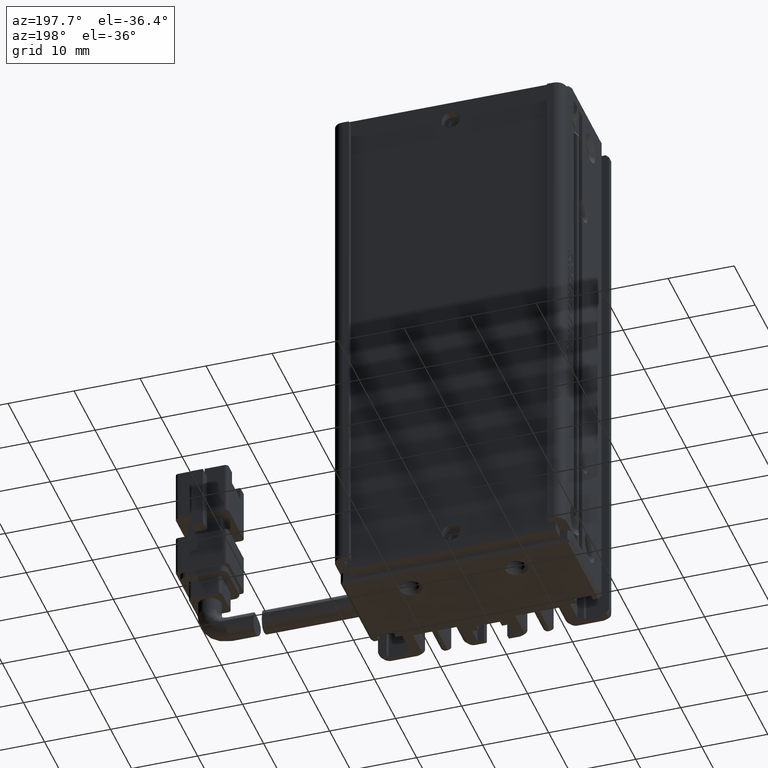
[diagram: clean part render]
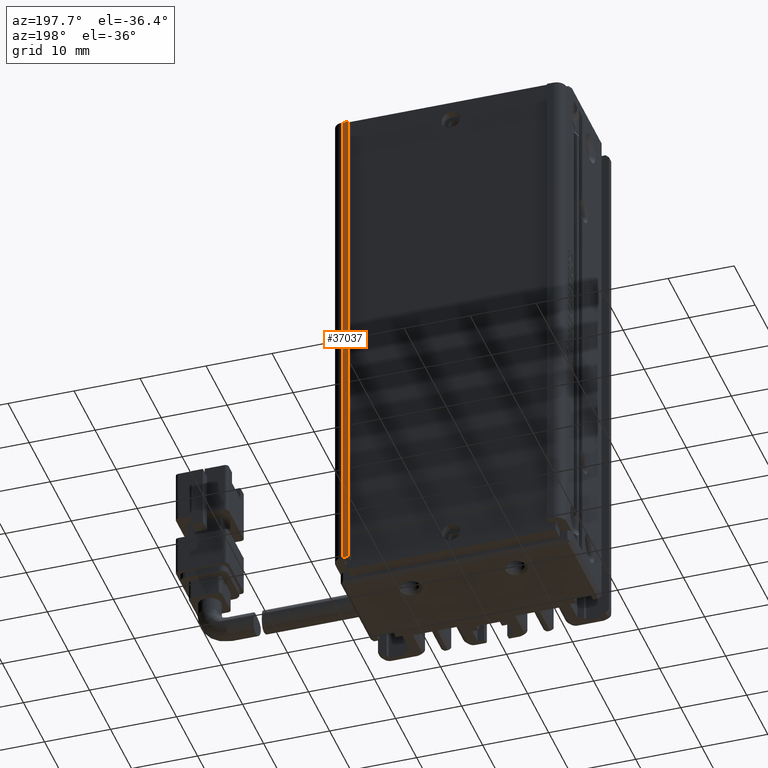
[diagram: same view with one face highlighted and labeled with its STEP entity id]
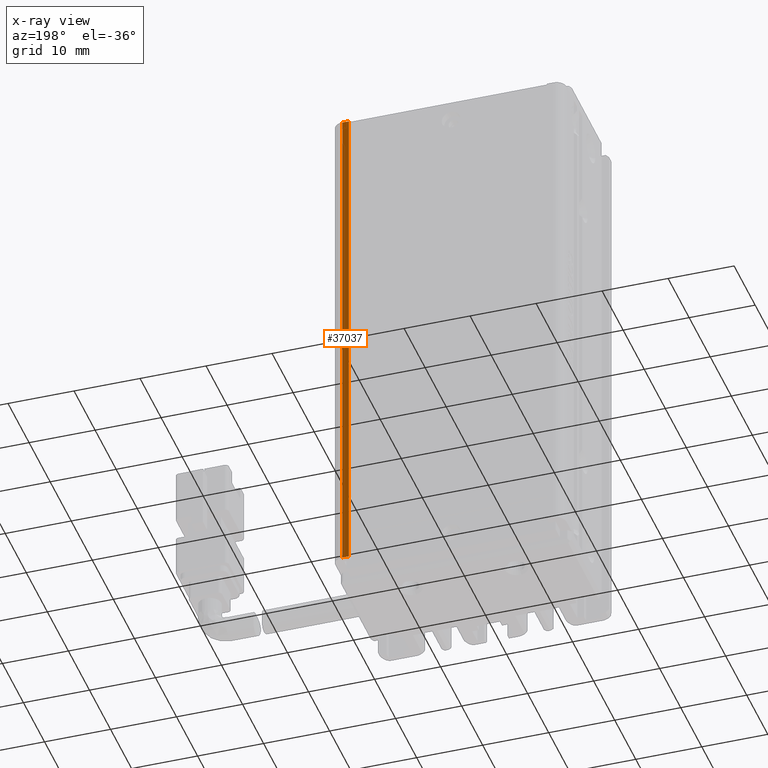
[diagram: x-ray of the same camera — body ghosted, the highlighted face saturated]
A machine part, auxiliary view. The second image highlights one B-rep face of the part: STEP entity #37037.
The next image is the same camera in x-ray: the body ghosted, the highlighted face saturated — about 0% of this face is hidden behind the body in this view.
In plain terms, the highlighted planar face has unit normal (-0, -1, 0).
Its self-contained STEP definition (entity closure, byte-faithful):
#1153 = CARTESIAN_POINT ( 'NONE',  ( 23.42537974683542500, 34.99073232304837700, -154.0000000000000000 ) ) ;
#2197 = PLANE ( 'NONE',  #28397 ) ;
#2682 = VECTOR ( 'NONE', #33272, 1000.000000000000000 ) ;
#2744 = EDGE_CURVE ( 'NONE', #23060, #11931, #28929, .T. ) ;
#3405 = EDGE_CURVE ( 'NONE', #30449, #5442, #8632, .T. ) ;
#3521 = ORIENTED_EDGE ( 'NONE', *, *, #10805, .F. ) ;
#3558 = DIRECTION ( 'NONE',  ( 0.0000000000000000000, 0.0000000000000000000, 1.000000000000000000 ) ) ;
#3581 = LINE ( 'NONE', #7380, #2682 ) ;
#5442 = VERTEX_POINT ( 'NONE', #23494 ) ;
#5577 = EDGE_CURVE ( 'NONE', #11931, #30449, #31237, .T. ) ;
#6362 = CARTESIAN_POINT ( 'NONE',  ( 40.92537974683552400, 34.99073232304843400, -76.00000000000001400 ) ) ;
#7380 = CARTESIAN_POINT ( 'NONE',  ( 55.92537974683542500, 34.99073232304837700, -74.00000000000001400 ) ) ;
#8632 = LINE ( 'NONE', #6362, #16861 ) ;
#10579 = VECTOR ( 'NONE', #3558, 1000.000000000000000 ) ;
#10805 = EDGE_CURVE ( 'NONE', #5442, #23060, #3581, .T. ) ;
#11079 = DIRECTION ( 'NONE',  ( -3.469446951953630400E-015, -1.000000000000000000, 0.0000000000000000000 ) ) ;
#11931 = VERTEX_POINT ( 'NONE', #16721 ) ;
#12514 = ORIENTED_EDGE ( 'NONE', *, *, #2744, .F. ) ;
#13018 = DIRECTION ( 'NONE',  ( 1.000000000000000000, -0.0000000000000000000, 0.0000000000000000000 ) ) ;
#16721 = CARTESIAN_POINT ( 'NONE',  ( 56.92537974683541800, 34.99073232304837700, -154.0000000000000000 ) ) ;
#16861 = VECTOR ( 'NONE', #26843, 1000.000000000000000 ) ;
#18021 = EDGE_LOOP ( 'NONE', ( #27655, #20089, #12514, #3521 ) ) ;
#20089 = ORIENTED_EDGE ( 'NONE', *, *, #5577, .F. ) ;
#23060 = VERTEX_POINT ( 'NONE', #27187 ) ;
#23494 = CARTESIAN_POINT ( 'NONE',  ( 55.92537974683541800, 34.99073232304837700, -76.00000000000001400 ) ) ;
#24589 = FACE_OUTER_BOUND ( 'NONE', #18021, .T. ) ;
#25570 = CARTESIAN_POINT ( 'NONE',  ( 40.92537974683552400, 34.99073232304843400, -74.00000000000001400 ) ) ;
#26175 = VECTOR ( 'NONE', #13018, 1000.000000000000000 ) ;
#26831 = CARTESIAN_POINT ( 'NONE',  ( 56.92537974683541100, 34.99073232304837700, -74.00000000000001400 ) ) ;
#26843 = DIRECTION ( 'NONE',  ( -1.000000000000000000, 3.469446951953630400E-015, -0.0000000000000000000 ) ) ;
#27187 = CARTESIAN_POINT ( 'NONE',  ( 55.92537974683541800, 34.99073232304837700, -154.0000000000000000 ) ) ;
#27655 = ORIENTED_EDGE ( 'NONE', *, *, #3405, .F. ) ;
#28397 = AXIS2_PLACEMENT_3D ( 'NONE', #25570, #11079, #37437 ) ;
#28929 = LINE ( 'NONE', #1153, #26175 ) ;
#30449 = VERTEX_POINT ( 'NONE', #37996 ) ;
#31237 = LINE ( 'NONE', #26831, #10579 ) ;
#33272 = DIRECTION ( 'NONE',  ( -0.0000000000000000000, -0.0000000000000000000, -1.000000000000000000 ) ) ;
#37037 = ADVANCED_FACE ( 'NONE', ( #24589 ), #2197, .F. ) ;
#37437 = DIRECTION ( 'NONE',  ( 1.000000000000000000, -3.469446951953630400E-015, 0.0000000000000000000 ) ) ;
#37996 = CARTESIAN_POINT ( 'NONE',  ( 56.92537974683541800, 34.99073232304837700, -76.00000000000001400 ) ) ;